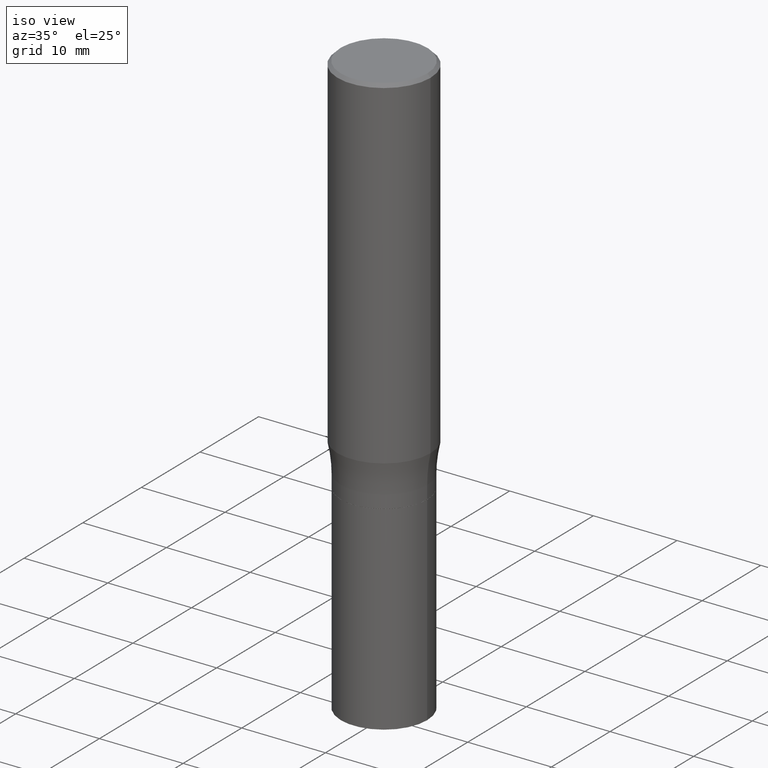
[diagram: clean part render]
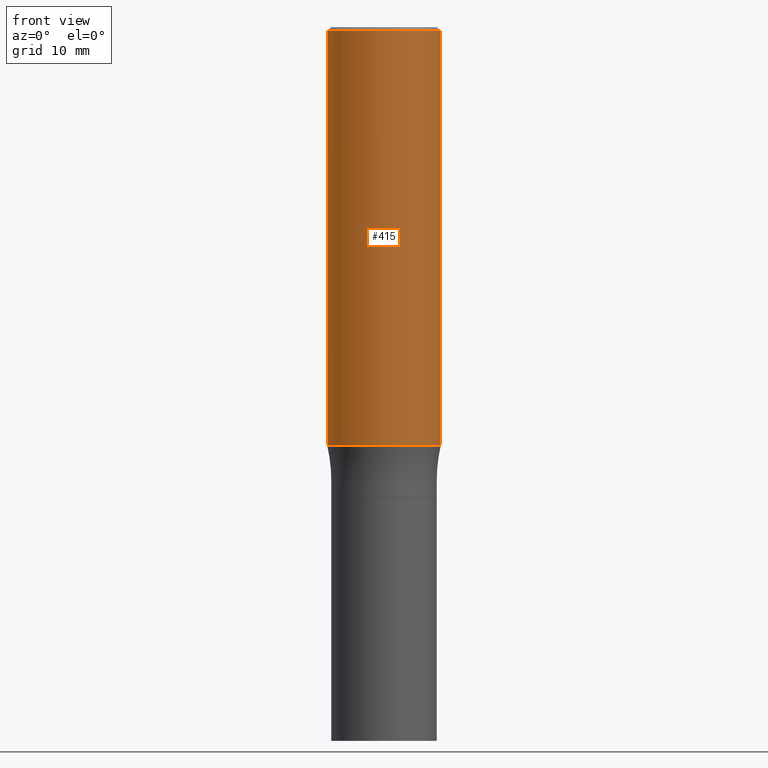
[diagram: tour spotlight — one face highlighted and labeled with its STEP entity id]
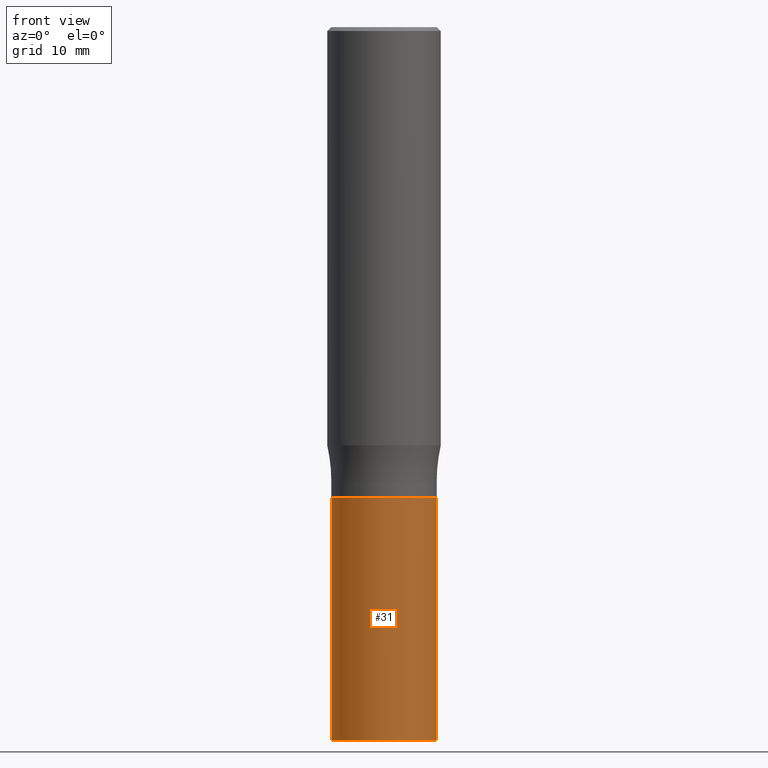
[diagram: tour spotlight — one face highlighted and labeled with its STEP entity id]
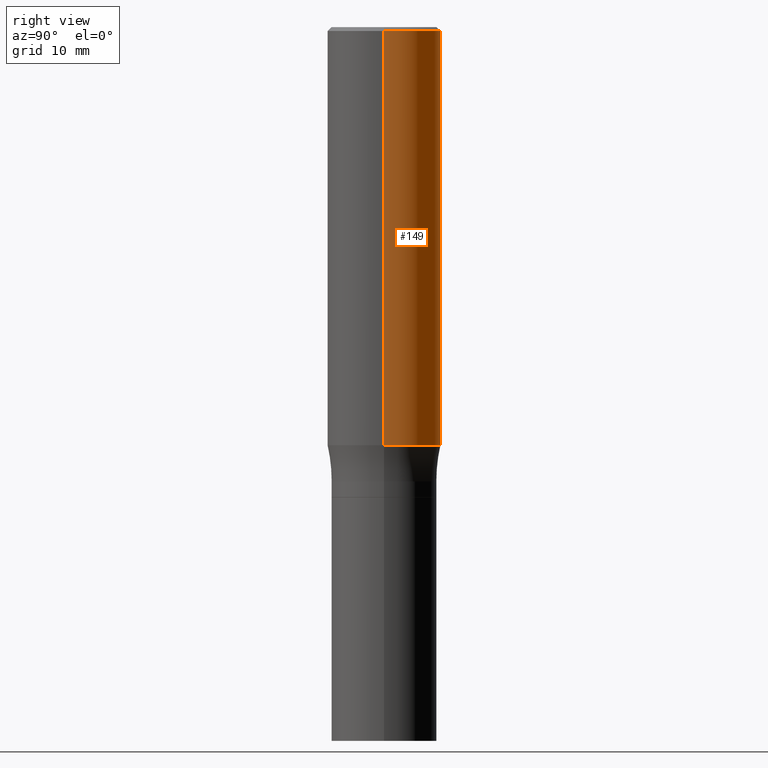
[diagram: tour spotlight — one face highlighted and labeled with its STEP entity id]
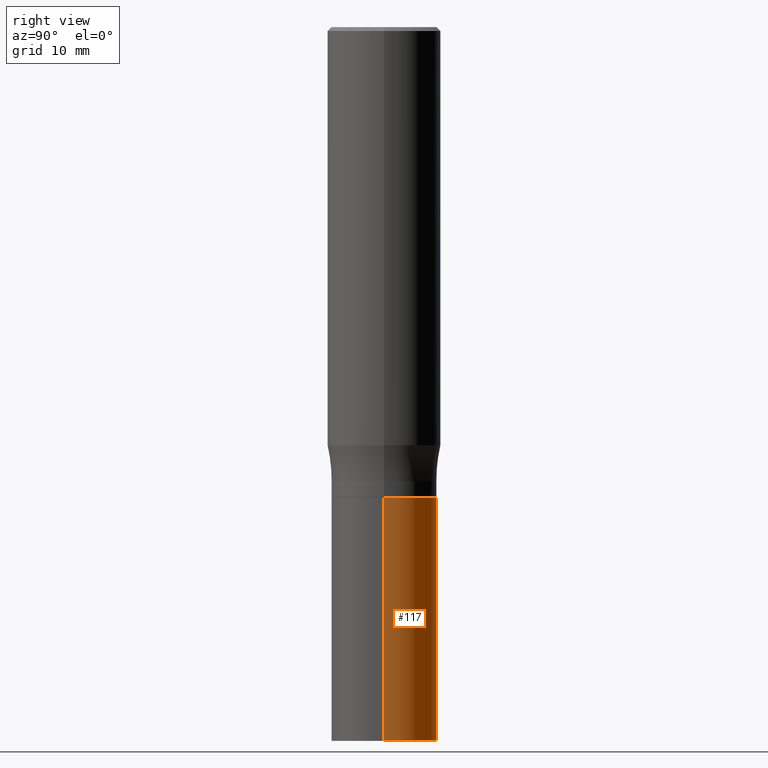
[diagram: tour spotlight — one face highlighted and labeled with its STEP entity id]
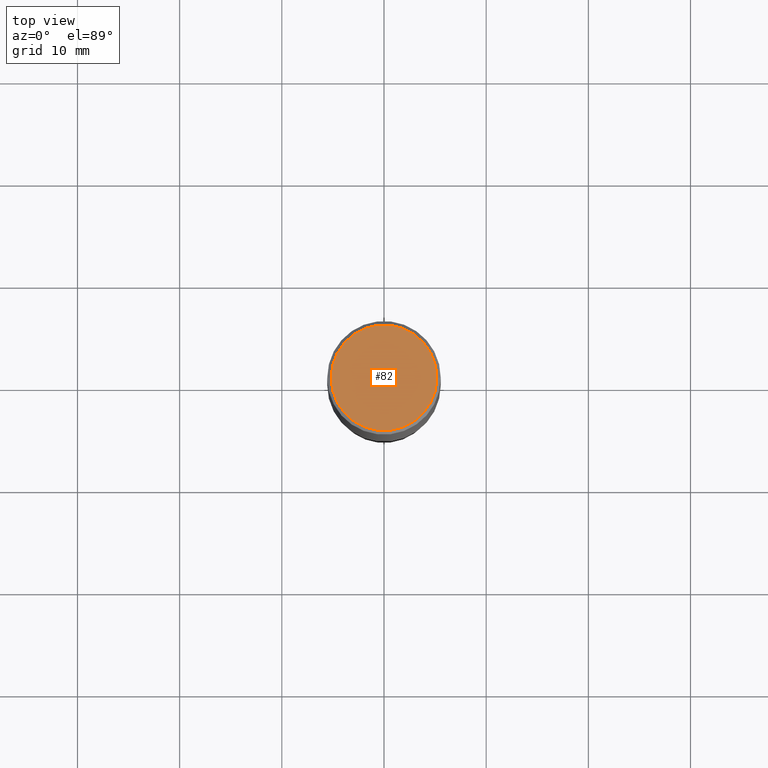
[diagram: tour spotlight — one face highlighted and labeled with its STEP entity id]
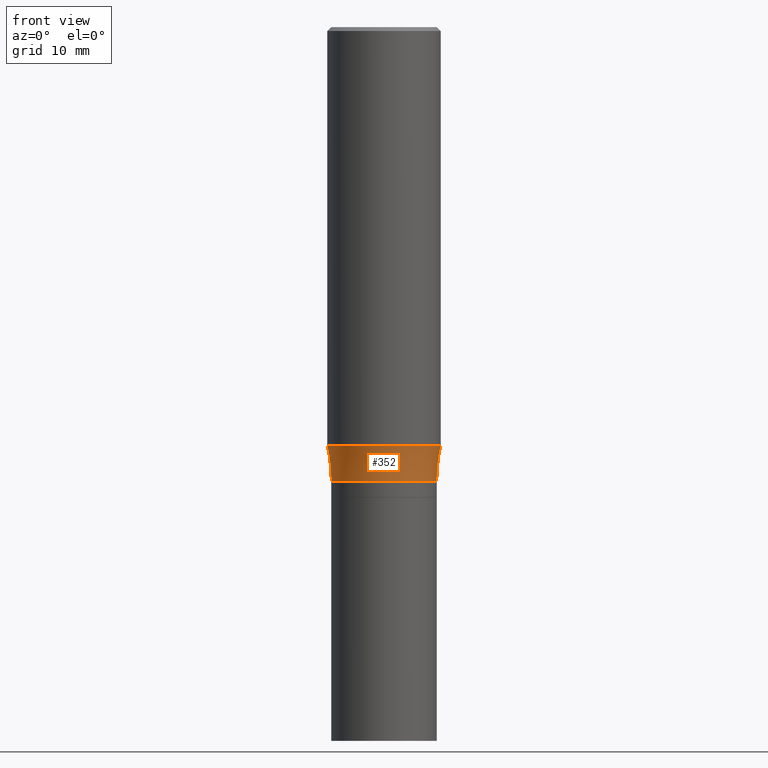
[diagram: tour spotlight — one face highlighted and labeled with its STEP entity id]
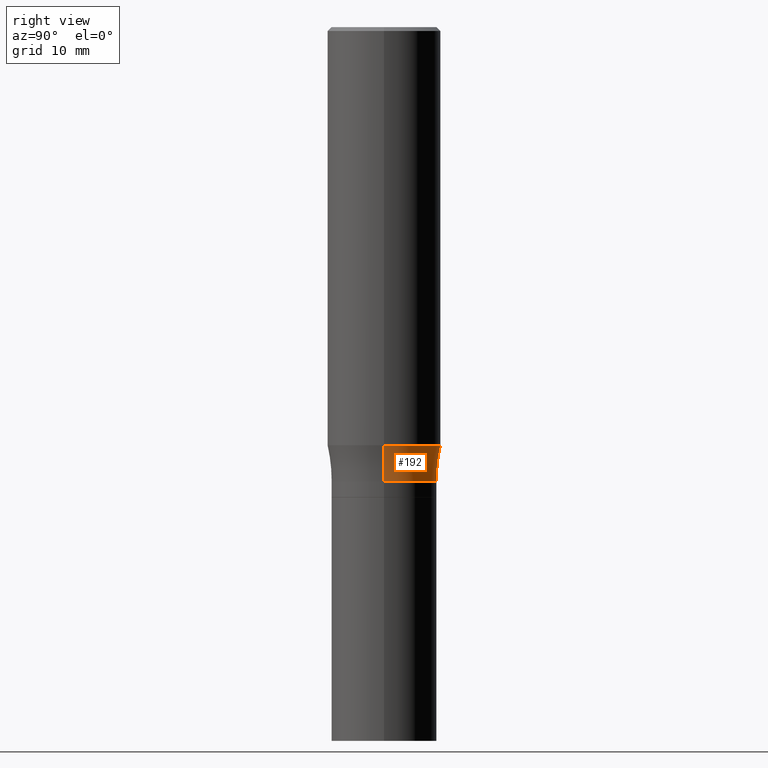
[diagram: tour spotlight — one face highlighted and labeled with its STEP entity id]
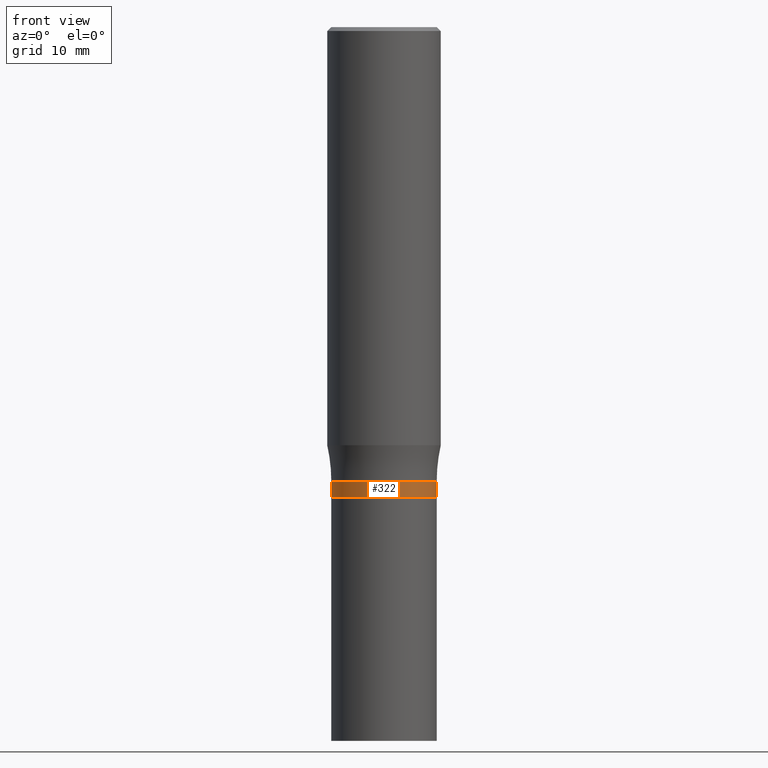
[diagram: tour spotlight — one face highlighted and labeled with its STEP entity id]
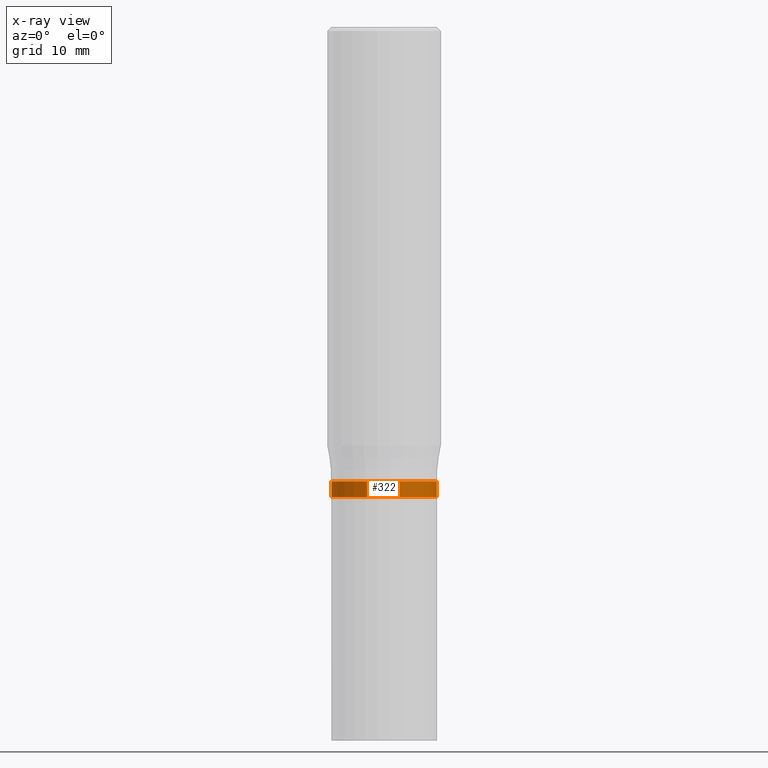
[diagram: x-ray of the same camera — body ghosted, this tour face saturated]
A machine part: a face-by-face anatomy tour. The part has 16 B-rep faces; the first image is the clean iso view, then the 8 largest visible faces are spotlighted one at a time (largest first), each with its STEP entity span.

Face 1 — front view, entity #415. In plain terms, the highlighted cylindrical surface (partial cylindrical patch) has radius 5.5563 mm, axis along (-0, 0, 1).
Definition (entity closure, byte-faithful):
#8 = DIRECTION ( 'NONE',  ( 1.000000000000000000, -6.982962677686266711E-15, 0.000000000000000000 ) ) ;
#13 = LINE ( 'NONE', #224, #209 ) ;
#27 = EDGE_CURVE ( 'NONE', #108, #305, #36, .T. ) ;
#36 = LINE ( 'NONE', #183, #390 ) ;
#47 = DIRECTION ( 'NONE',  ( 1.000000000000000000, -6.982962677686266711E-15, 4.876176775795935232E-29 ) ) ;
#53 = CYLINDRICAL_SURFACE ( 'NONE', #401, 0.2187500000000000278 ) ;
#74 = EDGE_CURVE ( 'NONE', #419, #305, #275, .T. ) ;
#83 = DIRECTION ( 'NONE',  ( -2.445468806185136877E-29, 3.491481338843145188E-15, 1.000000000000000000 ) ) ;
#108 = VERTEX_POINT ( 'NONE', #257 ) ;
#110 = CARTESIAN_POINT ( 'NONE',  ( 0.2187500000000000000, -1.553106157095169608E-15, -0.01499999999999999944 ) ) ;
#114 = VERTEX_POINT ( 'NONE', #238 ) ;
#135 = EDGE_LOOP ( 'NONE', ( #434, #165, #462, #171 ) ) ;
#144 = AXIS2_PLACEMENT_3D ( 'NONE', #340, #405, #8 ) ;
#152 = EDGE_CURVE ( 'NONE', #114, #419, #13, .T. ) ;
#165 = ORIENTED_EDGE ( 'NONE', *, *, #213, .T. ) ;
#171 = ORIENTED_EDGE ( 'NONE', *, *, #74, .F. ) ;
#183 = CARTESIAN_POINT ( 'NONE',  ( 0.2187500000000000278, -1.527523085743871040E-15, 1.066663669705361025E-29 ) ) ;
#209 = VECTOR ( 'NONE', #83, 39.37007874015748143 ) ;
#213 = EDGE_CURVE ( 'NONE', #114, #108, #349, .T. ) ;
#224 = CARTESIAN_POINT ( 'NONE',  ( -0.2187500000000000278, 1.554312234475219354E-15, -1.076017050993260762E-29 ) ) ;
#228 = CARTESIAN_POINT ( 'NONE',  ( -0.2187500000000000000, 1.475150865661223567E-15, -0.01499999999999999944 ) ) ;
#238 = CARTESIAN_POINT ( 'NONE',  ( -0.2187500000000000278, -4.070507188459050610E-15, -1.611012311696323307 ) ) ;
#241 = DIRECTION ( 'NONE',  ( 1.000000000000000000, -6.982962677686266711E-15, 0.000000000000000000 ) ) ;
#257 = CARTESIAN_POINT ( 'NONE',  ( 0.2187500000000000278, -7.152342508678141398E-15, -1.611012311696323307 ) ) ;
#264 = DIRECTION ( 'NONE',  ( -2.445468806185136597E-29, 3.491481338843145583E-15, 1.000000000000000000 ) ) ;
#275 = CIRCLE ( 'NONE', #144, 0.2187500000000000000 ) ;
#305 = VERTEX_POINT ( 'NONE', #110 ) ;
#308 = CARTESIAN_POINT ( 'NONE',  ( 3.939680354633564561E-29, -5.624819422934269766E-15, -1.611012311696323307 ) ) ;
#323 = DIRECTION ( 'NONE',  ( -2.445468806185136877E-29, 3.491481338843145188E-15, 1.000000000000000000 ) ) ;
#340 = CARTESIAN_POINT ( 'NONE',  ( 3.668203209277705088E-31, -5.237222008264718399E-17, -0.01499999999999999944 ) ) ;
#349 = CIRCLE ( 'NONE', #416, 0.2187500000000000278 ) ;
#365 = CARTESIAN_POINT ( 'NONE',  ( 0.000000000000000000, 0.000000000000000000, 0.000000000000000000 ) ) ;
#385 = DIRECTION ( 'NONE',  ( -2.445468806185136597E-29, 3.491481338843145583E-15, 1.000000000000000000 ) ) ;
#390 = VECTOR ( 'NONE', #323, 39.37007874015748143 ) ;
#401 = AXIS2_PLACEMENT_3D ( 'NONE', #365, #264, #47 ) ;
#402 = FACE_OUTER_BOUND ( 'NONE', #135, .T. ) ;
#405 = DIRECTION ( 'NONE',  ( -2.445468806185136597E-29, 3.491481338843145583E-15, 1.000000000000000000 ) ) ;
#415 = ADVANCED_FACE ( 'NONE', ( #402 ), #53, .T. ) ;
#416 = AXIS2_PLACEMENT_3D ( 'NONE', #308, #385, #241 ) ;
#419 = VERTEX_POINT ( 'NONE', #228 ) ;
#434 = ORIENTED_EDGE ( 'NONE', *, *, #152, .F. ) ;
#462 = ORIENTED_EDGE ( 'NONE', *, *, #27, .T. ) ;

Face 2 — front view, entity #31. In plain terms, the highlighted cylindrical surface (partial cylindrical patch) has radius 5.1587 mm, axis along (-0, 0, 1).
Definition (entity closure, byte-faithful):
#19 = CARTESIAN_POINT ( 'NONE',  ( 0.2030999999999999750, -7.744803905821859777E-15, -1.812000000000000055 ) ) ;
#20 = ORIENTED_EDGE ( 'NONE', *, *, #90, .F. ) ;
#25 = CYLINDRICAL_SURFACE ( 'NONE', #309, 0.2030999999999999750 ) ;
#31 = ADVANCED_FACE ( 'NONE', ( #467 ), #25, .T. ) ;
#32 = ORIENTED_EDGE ( 'NONE', *, *, #304, .F. ) ;
#40 = EDGE_CURVE ( 'NONE', #454, #376, #239, .T. ) ;
#84 = CARTESIAN_POINT ( 'NONE',  ( 0.2030999999999999750, -1.418239719838080578E-15, 9.903515031641544743E-30 ) ) ;
#90 = EDGE_CURVE ( 'NONE', #454, #93, #131, .T. ) ;
#93 = VERTEX_POINT ( 'NONE', #306 ) ;
#94 = DIRECTION ( 'NONE',  ( -2.445468806185136877E-29, 3.491481338843145188E-15, 1.000000000000000000 ) ) ;
#105 = AXIS2_PLACEMENT_3D ( 'NONE', #211, #283, #426 ) ;
#116 = VECTOR ( 'NONE', #94, 39.37007874015748143 ) ;
#131 = LINE ( 'NONE', #442, #116 ) ;
#142 = EDGE_LOOP ( 'NONE', ( #20, #433, #321, #32 ) ) ;
#164 = CARTESIAN_POINT ( 'NONE',  ( -0.2030999999999999750, -6.520956637572451722E-15, -2.750000000000000000 ) ) ;
#173 = DIRECTION ( 'NONE',  ( -2.445468806185136597E-29, 3.491481338843145583E-15, 1.000000000000000000 ) ) ;
#203 = DIRECTION ( 'NONE',  ( -2.445468806185136877E-29, 3.491481338843145188E-15, 1.000000000000000000 ) ) ;
#211 = CARTESIAN_POINT ( 'NONE',  ( 4.431189476807467280E-29, -6.326564185983779791E-15, -1.812000000000000055 ) ) ;
#215 = VERTEX_POINT ( 'NONE', #19 ) ;
#216 = DIRECTION ( 'NONE',  ( 1.000000000000000000, -6.982962677686266711E-15, 4.876176775795935793E-29 ) ) ;
#239 = CIRCLE ( 'NONE', #336, 0.2030999999999999750 ) ;
#260 = VECTOR ( 'NONE', #203, 39.37007874015748143 ) ;
#267 = LINE ( 'NONE', #84, #260 ) ;
#283 = DIRECTION ( 'NONE',  ( -2.445468806185136597E-29, 3.491481338843145583E-15, 1.000000000000000000 ) ) ;
#285 = CARTESIAN_POINT ( 'NONE',  ( 0.000000000000000000, 0.000000000000000000, 0.000000000000000000 ) ) ;
#300 = CARTESIAN_POINT ( 'NONE',  ( 0.2030999999999999750, -1.101981340165673142E-14, -2.750000000000000000 ) ) ;
#304 = EDGE_CURVE ( 'NONE', #93, #215, #465, .T. ) ;
#306 = CARTESIAN_POINT ( 'NONE',  ( -0.2030999999999999750, -6.520956637572451722E-15, -1.812000000000000055 ) ) ;
#309 = AXIS2_PLACEMENT_3D ( 'NONE', #285, #173, #216 ) ;
#321 = ORIENTED_EDGE ( 'NONE', *, *, #389, .T. ) ;
#336 = AXIS2_PLACEMENT_3D ( 'NONE', #427, #386, #346 ) ;
#346 = DIRECTION ( 'NONE',  ( 1.000000000000000000, -6.982962677686265922E-15, 0.000000000000000000 ) ) ;
#376 = VERTEX_POINT ( 'NONE', #300 ) ;
#386 = DIRECTION ( 'NONE',  ( -2.445468806185136597E-29, 3.491481338843145583E-15, 1.000000000000000000 ) ) ;
#389 = EDGE_CURVE ( 'NONE', #376, #215, #267, .T. ) ;
#426 = DIRECTION ( 'NONE',  ( 1.000000000000000000, -6.982962677686265922E-15, 0.000000000000000000 ) ) ;
#427 = CARTESIAN_POINT ( 'NONE',  ( 6.725039217009124520E-29, -9.601573681818649859E-15, -2.750000000000000000 ) ) ;
#433 = ORIENTED_EDGE ( 'NONE', *, *, #40, .T. ) ;
#442 = CARTESIAN_POINT ( 'NONE',  ( -0.2030999999999999750, 1.443112296328763300E-15, -9.990357168307712801E-30 ) ) ;
#454 = VERTEX_POINT ( 'NONE', #164 ) ;
#465 = CIRCLE ( 'NONE', #105, 0.2030999999999999750 ) ;
#467 = FACE_OUTER_BOUND ( 'NONE', #142, .T. ) ;

Face 3 — right view, entity #149. In plain terms, the highlighted cylindrical surface (partial cylindrical patch) has radius 5.5563 mm, axis along (-0, 0, 1).
Definition (entity closure, byte-faithful):
#13 = LINE ( 'NONE', #224, #209 ) ;
#27 = EDGE_CURVE ( 'NONE', #108, #305, #36, .T. ) ;
#35 = DIRECTION ( 'NONE',  ( -2.445468806185136597E-29, 3.491481338843145583E-15, 1.000000000000000000 ) ) ;
#36 = LINE ( 'NONE', #183, #390 ) ;
#62 = AXIS2_PLACEMENT_3D ( 'NONE', #159, #413, #207 ) ;
#77 = FACE_OUTER_BOUND ( 'NONE', #103, .T. ) ;
#83 = DIRECTION ( 'NONE',  ( -2.445468806185136877E-29, 3.491481338843145188E-15, 1.000000000000000000 ) ) ;
#103 = EDGE_LOOP ( 'NONE', ( #150, #280, #112, #277 ) ) ;
#108 = VERTEX_POINT ( 'NONE', #257 ) ;
#110 = CARTESIAN_POINT ( 'NONE',  ( 0.2187500000000000000, -1.553106157095169608E-15, -0.01499999999999999944 ) ) ;
#112 = ORIENTED_EDGE ( 'NONE', *, *, #200, .F. ) ;
#114 = VERTEX_POINT ( 'NONE', #238 ) ;
#149 = ADVANCED_FACE ( 'NONE', ( #77 ), #303, .T. ) ;
#150 = ORIENTED_EDGE ( 'NONE', *, *, #178, .T. ) ;
#152 = EDGE_CURVE ( 'NONE', #114, #419, #13, .T. ) ;
#153 = CIRCLE ( 'NONE', #62, 0.2187500000000000278 ) ;
#159 = CARTESIAN_POINT ( 'NONE',  ( 3.939680354633564561E-29, -5.624819422934269766E-15, -1.611012311696323307 ) ) ;
#178 = EDGE_CURVE ( 'NONE', #108, #114, #153, .T. ) ;
#183 = CARTESIAN_POINT ( 'NONE',  ( 0.2187500000000000278, -1.527523085743871040E-15, 1.066663669705361025E-29 ) ) ;
#200 = EDGE_CURVE ( 'NONE', #305, #419, #202, .T. ) ;
#201 = DIRECTION ( 'NONE',  ( -2.445468806185136597E-29, 3.491481338843145583E-15, 1.000000000000000000 ) ) ;
#202 = CIRCLE ( 'NONE', #456, 0.2187500000000000000 ) ;
#207 = DIRECTION ( 'NONE',  ( 1.000000000000000000, -6.982962677686266711E-15, 0.000000000000000000 ) ) ;
#209 = VECTOR ( 'NONE', #83, 39.37007874015748143 ) ;
#224 = CARTESIAN_POINT ( 'NONE',  ( -0.2187500000000000278, 1.554312234475219354E-15, -1.076017050993260762E-29 ) ) ;
#228 = CARTESIAN_POINT ( 'NONE',  ( -0.2187500000000000000, 1.475150865661223567E-15, -0.01499999999999999944 ) ) ;
#238 = CARTESIAN_POINT ( 'NONE',  ( -0.2187500000000000278, -4.070507188459050610E-15, -1.611012311696323307 ) ) ;
#240 = CARTESIAN_POINT ( 'NONE',  ( 3.668203209277705088E-31, -5.237222008264718399E-17, -0.01499999999999999944 ) ) ;
#257 = CARTESIAN_POINT ( 'NONE',  ( 0.2187500000000000278, -7.152342508678141398E-15, -1.611012311696323307 ) ) ;
#272 = CARTESIAN_POINT ( 'NONE',  ( 0.000000000000000000, 0.000000000000000000, 0.000000000000000000 ) ) ;
#277 = ORIENTED_EDGE ( 'NONE', *, *, #27, .F. ) ;
#280 = ORIENTED_EDGE ( 'NONE', *, *, #152, .T. ) ;
#303 = CYLINDRICAL_SURFACE ( 'NONE', #400, 0.2187500000000000278 ) ;
#305 = VERTEX_POINT ( 'NONE', #110 ) ;
#323 = DIRECTION ( 'NONE',  ( -2.445468806185136877E-29, 3.491481338843145188E-15, 1.000000000000000000 ) ) ;
#337 = DIRECTION ( 'NONE',  ( 1.000000000000000000, -6.982962677686266711E-15, 4.876176775795935232E-29 ) ) ;
#390 = VECTOR ( 'NONE', #323, 39.37007874015748143 ) ;
#396 = DIRECTION ( 'NONE',  ( 1.000000000000000000, -6.982962677686266711E-15, 0.000000000000000000 ) ) ;
#400 = AXIS2_PLACEMENT_3D ( 'NONE', #272, #201, #337 ) ;
#413 = DIRECTION ( 'NONE',  ( -2.445468806185136597E-29, 3.491481338843145583E-15, 1.000000000000000000 ) ) ;
#419 = VERTEX_POINT ( 'NONE', #228 ) ;
#456 = AXIS2_PLACEMENT_3D ( 'NONE', #240, #35, #396 ) ;

Face 4 — right view, entity #117. In plain terms, the highlighted cylindrical surface (partial cylindrical patch) has radius 5.1587 mm, axis along (-0, 0, 1).
Definition (entity closure, byte-faithful):
#5 = CARTESIAN_POINT ( 'NONE',  ( 4.431189476807467280E-29, -6.326564185983779791E-15, -1.812000000000000055 ) ) ;
#10 = FACE_OUTER_BOUND ( 'NONE', #425, .T. ) ;
#12 = CIRCLE ( 'NONE', #466, 0.2030999999999999750 ) ;
#19 = CARTESIAN_POINT ( 'NONE',  ( 0.2030999999999999750, -7.744803905821859777E-15, -1.812000000000000055 ) ) ;
#39 = DIRECTION ( 'NONE',  ( -2.445468806185136597E-29, 3.491481338843145583E-15, 1.000000000000000000 ) ) ;
#50 = ORIENTED_EDGE ( 'NONE', *, *, #281, .T. ) ;
#84 = CARTESIAN_POINT ( 'NONE',  ( 0.2030999999999999750, -1.418239719838080578E-15, 9.903515031641544743E-30 ) ) ;
#85 = CIRCLE ( 'NONE', #219, 0.2030999999999999750 ) ;
#90 = EDGE_CURVE ( 'NONE', #454, #93, #131, .T. ) ;
#91 = DIRECTION ( 'NONE',  ( 1.000000000000000000, -6.982962677686266711E-15, 4.876176775795935793E-29 ) ) ;
#93 = VERTEX_POINT ( 'NONE', #306 ) ;
#94 = DIRECTION ( 'NONE',  ( -2.445468806185136877E-29, 3.491481338843145188E-15, 1.000000000000000000 ) ) ;
#96 = AXIS2_PLACEMENT_3D ( 'NONE', #410, #231, #91 ) ;
#116 = VECTOR ( 'NONE', #94, 39.37007874015748143 ) ;
#117 = ADVANCED_FACE ( 'NONE', ( #10 ), #335, .T. ) ;
#127 = DIRECTION ( 'NONE',  ( -2.445468806185136597E-29, 3.491481338843145583E-15, 1.000000000000000000 ) ) ;
#131 = LINE ( 'NONE', #442, #116 ) ;
#140 = ORIENTED_EDGE ( 'NONE', *, *, #389, .F. ) ;
#164 = CARTESIAN_POINT ( 'NONE',  ( -0.2030999999999999750, -6.520956637572451722E-15, -2.750000000000000000 ) ) ;
#167 = ORIENTED_EDGE ( 'NONE', *, *, #90, .T. ) ;
#198 = DIRECTION ( 'NONE',  ( 1.000000000000000000, -6.982962677686265922E-15, 0.000000000000000000 ) ) ;
#203 = DIRECTION ( 'NONE',  ( -2.445468806185136877E-29, 3.491481338843145188E-15, 1.000000000000000000 ) ) ;
#215 = VERTEX_POINT ( 'NONE', #19 ) ;
#219 = AXIS2_PLACEMENT_3D ( 'NONE', #298, #39, #356 ) ;
#231 = DIRECTION ( 'NONE',  ( -2.445468806185136597E-29, 3.491481338843145583E-15, 1.000000000000000000 ) ) ;
#260 = VECTOR ( 'NONE', #203, 39.37007874015748143 ) ;
#267 = LINE ( 'NONE', #84, #260 ) ;
#279 = ORIENTED_EDGE ( 'NONE', *, *, #360, .F. ) ;
#281 = EDGE_CURVE ( 'NONE', #376, #454, #85, .T. ) ;
#298 = CARTESIAN_POINT ( 'NONE',  ( 6.725039217009124520E-29, -9.601573681818649859E-15, -2.750000000000000000 ) ) ;
#300 = CARTESIAN_POINT ( 'NONE',  ( 0.2030999999999999750, -1.101981340165673142E-14, -2.750000000000000000 ) ) ;
#306 = CARTESIAN_POINT ( 'NONE',  ( -0.2030999999999999750, -6.520956637572451722E-15, -1.812000000000000055 ) ) ;
#335 = CYLINDRICAL_SURFACE ( 'NONE', #96, 0.2030999999999999750 ) ;
#356 = DIRECTION ( 'NONE',  ( 1.000000000000000000, -6.982962677686265922E-15, 0.000000000000000000 ) ) ;
#360 = EDGE_CURVE ( 'NONE', #215, #93, #12, .T. ) ;
#376 = VERTEX_POINT ( 'NONE', #300 ) ;
#389 = EDGE_CURVE ( 'NONE', #376, #215, #267, .T. ) ;
#410 = CARTESIAN_POINT ( 'NONE',  ( 0.000000000000000000, 0.000000000000000000, 0.000000000000000000 ) ) ;
#425 = EDGE_LOOP ( 'NONE', ( #50, #167, #279, #140 ) ) ;
#442 = CARTESIAN_POINT ( 'NONE',  ( -0.2030999999999999750, 1.443112296328763300E-15, -9.990357168307712801E-30 ) ) ;
#454 = VERTEX_POINT ( 'NONE', #164 ) ;
#466 = AXIS2_PLACEMENT_3D ( 'NONE', #5, #127, #198 ) ;

Face 5 — top view, entity #82. In plain terms, the highlighted planar face has unit normal (0, -0, -1).
Definition (entity closure, byte-faithful):
#22 = CIRCLE ( 'NONE', #177, 0.2037499999999999867 ) ;
#78 = CARTESIAN_POINT ( 'NONE',  ( -0.2037499999999999867, 1.448964755619900027E-15, -1.094037480906238857E-16 ) ) ;
#82 = ADVANCED_FACE ( 'NONE', ( #195 ), #269, .F. ) ;
#88 = DIRECTION ( 'NONE',  ( 2.438088387897960049E-29, -3.491481338843145188E-15, -1.000000000000000000 ) ) ;
#156 = CARTESIAN_POINT ( 'NONE',  ( 2.675434532353328846E-45, -3.819811448578746494E-31, -1.094037480906138524E-16 ) ) ;
#177 = AXIS2_PLACEMENT_3D ( 'NONE', #406, #409, #236 ) ;
#191 = DIRECTION ( 'NONE',  ( 1.000000000000000000, -6.982962677686266711E-15, 4.875065411617369217E-29 ) ) ;
#195 = FACE_OUTER_BOUND ( 'NONE', #218, .T. ) ;
#197 = CARTESIAN_POINT ( 'NONE',  ( 1.422778645578576487E-15, 0.2037499999999999867, -7.660911968345976720E-16 ) ) ;
#218 = EDGE_LOOP ( 'NONE', ( #271, #464 ) ) ;
#226 = CIRCLE ( 'NONE', #432, 0.2037499999999999867 ) ;
#236 = DIRECTION ( 'NONE',  ( 1.000000000000000000, -6.982962677686266711E-15, 4.875065411617369217E-29 ) ) ;
#263 = CARTESIAN_POINT ( 'NONE',  ( 0.2037499999999999867, -1.475466312070559866E-15, -1.094037480906037204E-16 ) ) ;
#268 = AXIS2_PLACEMENT_3D ( 'NONE', #197, #88, #370 ) ;
#269 = PLANE ( 'NONE',  #268 ) ;
#271 = ORIENTED_EDGE ( 'NONE', *, *, #404, .T. ) ;
#290 = VERTEX_POINT ( 'NONE', #263 ) ;
#292 = VERTEX_POINT ( 'NONE', #78 ) ;
#338 = DIRECTION ( 'NONE',  ( -2.445468806185136597E-29, 3.491481338843145583E-15, 1.000000000000000000 ) ) ;
#370 = DIRECTION ( 'NONE',  ( -1.000000000000000000, 6.982962677686265922E-15, -4.876176775795935793E-29 ) ) ;
#394 = EDGE_CURVE ( 'NONE', #290, #292, #22, .T. ) ;
#404 = EDGE_CURVE ( 'NONE', #292, #290, #226, .T. ) ;
#406 = CARTESIAN_POINT ( 'NONE',  ( 2.675434532353328846E-45, -3.819811448578746494E-31, -1.094037480906138524E-16 ) ) ;
#409 = DIRECTION ( 'NONE',  ( -2.445468806185136597E-29, 3.491481338843145583E-15, 1.000000000000000000 ) ) ;
#432 = AXIS2_PLACEMENT_3D ( 'NONE', #156, #338, #191 ) ;
#464 = ORIENTED_EDGE ( 'NONE', *, *, #394, .T. ) ;

Face 6 — front view, entity #352. In plain terms, the highlighted toroidal blend (fillet) surface has major radius 21.0337 mm and minor (blend) radius 15.875 mm.
Definition (entity closure, byte-faithful):
#9 = DIRECTION ( 'NONE',  ( -2.445468806185136597E-29, 3.491481338843145583E-15, 1.000000000000000000 ) ) ;
#11 = AXIS2_PLACEMENT_3D ( 'NONE', #187, #265, #194 ) ;
#14 = DIRECTION ( 'NONE',  ( 1.000000000000000000, -6.982962677686266711E-15, 4.883557194083112901E-29 ) ) ;
#42 = FACE_OUTER_BOUND ( 'NONE', #118, .T. ) ;
#49 = CARTESIAN_POINT ( 'NONE',  ( 4.279570410823988484E-29, -6.110092342975504671E-15, -1.750000000000000000 ) ) ;
#66 = ORIENTED_EDGE ( 'NONE', *, *, #453, .T. ) ;
#79 = TOROIDAL_SURFACE ( 'NONE', #391, 0.8281000000000000583, 0.6250000000000000000 ) ;
#108 = VERTEX_POINT ( 'NONE', #257 ) ;
#114 = VERTEX_POINT ( 'NONE', #238 ) ;
#118 = EDGE_LOOP ( 'NONE', ( #319, #66, #429, #450 ) ) ;
#122 = DIRECTION ( 'NONE',  ( -1.000000000000000000, 7.105427357601001859E-15, 0.000000000000000000 ) ) ;
#162 = AXIS2_PLACEMENT_3D ( 'NONE', #435, #217, #258 ) ;
#187 = CARTESIAN_POINT ( 'NONE',  ( 4.279570410823988484E-29, -6.110092342975504671E-15, -1.750000000000000000 ) ) ;
#194 = DIRECTION ( 'NONE',  ( 1.000000000000000000, -6.982962677686265133E-15, 0.000000000000000000 ) ) ;
#205 = CIRCLE ( 'NONE', #374, 0.6250000000000000000 ) ;
#213 = EDGE_CURVE ( 'NONE', #114, #108, #349, .T. ) ;
#217 = DIRECTION ( 'NONE',  ( -6.982962677686266711E-15, -1.000000000000000000, 3.491481338843145583E-15 ) ) ;
#233 = EDGE_CURVE ( 'NONE', #455, #341, #316, .T. ) ;
#238 = CARTESIAN_POINT ( 'NONE',  ( -0.2187500000000000278, -4.070507188459050610E-15, -1.611012311696323307 ) ) ;
#241 = DIRECTION ( 'NONE',  ( 1.000000000000000000, -6.982962677686266711E-15, 0.000000000000000000 ) ) ;
#257 = CARTESIAN_POINT ( 'NONE',  ( 0.2187500000000000278, -7.152342508678141398E-15, -1.611012311696323307 ) ) ;
#258 = DIRECTION ( 'NONE',  ( 1.000000000000000000, -6.982962677686265133E-15, 0.000000000000000000 ) ) ;
#265 = DIRECTION ( 'NONE',  ( -2.445468806185136597E-29, 3.491481338843145583E-15, 1.000000000000000000 ) ) ;
#308 = CARTESIAN_POINT ( 'NONE',  ( 3.939680354633564561E-29, -5.624819422934269766E-15, -1.611012311696323307 ) ) ;
#315 = EDGE_CURVE ( 'NONE', #108, #341, #358, .T. ) ;
#316 = CIRCLE ( 'NONE', #11, 0.2031000000000001415 ) ;
#319 = ORIENTED_EDGE ( 'NONE', *, *, #213, .F. ) ;
#334 = CARTESIAN_POINT ( 'NONE',  ( -0.2031000000000001415, -4.368743617552894511E-15, -1.750000000000000000 ) ) ;
#341 = VERTEX_POINT ( 'NONE', #371 ) ;
#349 = CIRCLE ( 'NONE', #416, 0.2187500000000000278 ) ;
#352 = ADVANCED_FACE ( 'NONE', ( #42 ), #79, .F. ) ;
#358 = CIRCLE ( 'NONE', #162, 0.6250000000000000000 ) ;
#371 = CARTESIAN_POINT ( 'NONE',  ( 0.2031000000000001415, -7.528332062813585446E-15, -1.750000000000000000 ) ) ;
#374 = AXIS2_PLACEMENT_3D ( 'NONE', #437, #403, #122 ) ;
#385 = DIRECTION ( 'NONE',  ( -2.445468806185136597E-29, 3.491481338843145583E-15, 1.000000000000000000 ) ) ;
#391 = AXIS2_PLACEMENT_3D ( 'NONE', #49, #9, #14 ) ;
#403 = DIRECTION ( 'NONE',  ( 7.105427357601001859E-15, 1.000000000000000000, -3.491481338843145583E-15 ) ) ;
#416 = AXIS2_PLACEMENT_3D ( 'NONE', #308, #385, #241 ) ;
#429 = ORIENTED_EDGE ( 'NONE', *, *, #233, .T. ) ;
#435 = CARTESIAN_POINT ( 'NONE',  ( 0.8281000000000000583, -1.189268373636750372E-14, -1.750000000000000000 ) ) ;
#437 = CARTESIAN_POINT ( 'NONE',  ( -0.8281000000000000583, -2.260879481461139275E-16, -1.750000000000000000 ) ) ;
#450 = ORIENTED_EDGE ( 'NONE', *, *, #315, .F. ) ;
#453 = EDGE_CURVE ( 'NONE', #114, #455, #205, .T. ) ;
#455 = VERTEX_POINT ( 'NONE', #334 ) ;

Face 7 — right view, entity #192. In plain terms, the highlighted toroidal blend (fillet) surface has major radius 21.0337 mm and minor (blend) radius 15.875 mm.
Definition (entity closure, byte-faithful):
#7 = CARTESIAN_POINT ( 'NONE',  ( 4.279570410823988484E-29, -6.110092342975504671E-15, -1.750000000000000000 ) ) ;
#15 = EDGE_LOOP ( 'NONE', ( #312, #392, #34, #119 ) ) ;
#34 = ORIENTED_EDGE ( 'NONE', *, *, #315, .T. ) ;
#62 = AXIS2_PLACEMENT_3D ( 'NONE', #159, #413, #207 ) ;
#108 = VERTEX_POINT ( 'NONE', #257 ) ;
#114 = VERTEX_POINT ( 'NONE', #238 ) ;
#119 = ORIENTED_EDGE ( 'NONE', *, *, #243, .T. ) ;
#122 = DIRECTION ( 'NONE',  ( -1.000000000000000000, 7.105427357601001859E-15, 0.000000000000000000 ) ) ;
#137 = DIRECTION ( 'NONE',  ( -2.445468806185136597E-29, 3.491481338843145583E-15, 1.000000000000000000 ) ) ;
#153 = CIRCLE ( 'NONE', #62, 0.2187500000000000278 ) ;
#155 = FACE_OUTER_BOUND ( 'NONE', #15, .T. ) ;
#157 = DIRECTION ( 'NONE',  ( 1.000000000000000000, -6.982962677686265133E-15, 0.000000000000000000 ) ) ;
#159 = CARTESIAN_POINT ( 'NONE',  ( 3.939680354633564561E-29, -5.624819422934269766E-15, -1.611012311696323307 ) ) ;
#162 = AXIS2_PLACEMENT_3D ( 'NONE', #435, #217, #258 ) ;
#178 = EDGE_CURVE ( 'NONE', #108, #114, #153, .T. ) ;
#184 = DIRECTION ( 'NONE',  ( -2.445468806185136597E-29, 3.491481338843145583E-15, 1.000000000000000000 ) ) ;
#192 = ADVANCED_FACE ( 'NONE', ( #155 ), #399, .F. ) ;
#205 = CIRCLE ( 'NONE', #374, 0.6250000000000000000 ) ;
#207 = DIRECTION ( 'NONE',  ( 1.000000000000000000, -6.982962677686266711E-15, 0.000000000000000000 ) ) ;
#217 = DIRECTION ( 'NONE',  ( -6.982962677686266711E-15, -1.000000000000000000, 3.491481338843145583E-15 ) ) ;
#238 = CARTESIAN_POINT ( 'NONE',  ( -0.2187500000000000278, -4.070507188459050610E-15, -1.611012311696323307 ) ) ;
#243 = EDGE_CURVE ( 'NONE', #341, #455, #373, .T. ) ;
#254 = AXIS2_PLACEMENT_3D ( 'NONE', #7, #184, #157 ) ;
#257 = CARTESIAN_POINT ( 'NONE',  ( 0.2187500000000000278, -7.152342508678141398E-15, -1.611012311696323307 ) ) ;
#258 = DIRECTION ( 'NONE',  ( 1.000000000000000000, -6.982962677686265133E-15, 0.000000000000000000 ) ) ;
#295 = AXIS2_PLACEMENT_3D ( 'NONE', #299, #137, #378 ) ;
#299 = CARTESIAN_POINT ( 'NONE',  ( 4.279570410823988484E-29, -6.110092342975504671E-15, -1.750000000000000000 ) ) ;
#312 = ORIENTED_EDGE ( 'NONE', *, *, #453, .F. ) ;
#315 = EDGE_CURVE ( 'NONE', #108, #341, #358, .T. ) ;
#334 = CARTESIAN_POINT ( 'NONE',  ( -0.2031000000000001415, -4.368743617552894511E-15, -1.750000000000000000 ) ) ;
#341 = VERTEX_POINT ( 'NONE', #371 ) ;
#358 = CIRCLE ( 'NONE', #162, 0.6250000000000000000 ) ;
#371 = CARTESIAN_POINT ( 'NONE',  ( 0.2031000000000001415, -7.528332062813585446E-15, -1.750000000000000000 ) ) ;
#373 = CIRCLE ( 'NONE', #254, 0.2031000000000001415 ) ;
#374 = AXIS2_PLACEMENT_3D ( 'NONE', #437, #403, #122 ) ;
#378 = DIRECTION ( 'NONE',  ( 1.000000000000000000, -6.982962677686266711E-15, 4.883557194083112901E-29 ) ) ;
#392 = ORIENTED_EDGE ( 'NONE', *, *, #178, .F. ) ;
#399 = TOROIDAL_SURFACE ( 'NONE', #295, 0.8281000000000000583, 0.6250000000000000000 ) ;
#403 = DIRECTION ( 'NONE',  ( 7.105427357601001859E-15, 1.000000000000000000, -3.491481338843145583E-15 ) ) ;
#413 = DIRECTION ( 'NONE',  ( -2.445468806185136597E-29, 3.491481338843145583E-15, 1.000000000000000000 ) ) ;
#435 = CARTESIAN_POINT ( 'NONE',  ( 0.8281000000000000583, -1.189268373636750372E-14, -1.750000000000000000 ) ) ;
#437 = CARTESIAN_POINT ( 'NONE',  ( -0.8281000000000000583, -2.260879481461139275E-16, -1.750000000000000000 ) ) ;
#453 = EDGE_CURVE ( 'NONE', #114, #455, #205, .T. ) ;
#455 = VERTEX_POINT ( 'NONE', #334 ) ;

Face 8 — front view, entity #322. An x-ray twin of the same camera follows (body ghosted, this face saturated) — the face is partly hidden behind the body. In plain terms, the highlighted cylindrical surface (partial cylindrical patch) has radius 5.1587 mm, axis along (-0, 0, 1).
Definition (entity closure, byte-faithful):
#4 = DIRECTION ( 'NONE',  ( -2.445468806185136877E-29, 3.491481338843145188E-15, 1.000000000000000000 ) ) ;
#11 = AXIS2_PLACEMENT_3D ( 'NONE', #187, #265, #194 ) ;
#29 = CYLINDRICAL_SURFACE ( 'NONE', #230, 0.2031000000000001415 ) ;
#44 = AXIS2_PLACEMENT_3D ( 'NONE', #185, #327, #293 ) ;
#55 = CARTESIAN_POINT ( 'NONE',  ( -0.2031000000000001415, 1.443112296328764483E-15, -9.990357168307721209E-30 ) ) ;
#64 = EDGE_LOOP ( 'NONE', ( #133, #100, #97, #353 ) ) ;
#97 = ORIENTED_EDGE ( 'NONE', *, *, #291, .T. ) ;
#100 = ORIENTED_EDGE ( 'NONE', *, *, #294, .T. ) ;
#124 = DIRECTION ( 'NONE',  ( 1.000000000000000000, -6.982962677686266711E-15, 4.876176775795936353E-29 ) ) ;
#133 = ORIENTED_EDGE ( 'NONE', *, *, #180, .F. ) ;
#175 = VECTOR ( 'NONE', #398, 39.37007874015748143 ) ;
#180 = EDGE_CURVE ( 'NONE', #395, #455, #190, .T. ) ;
#185 = CARTESIAN_POINT ( 'NONE',  ( 4.429966742404375039E-29, -6.324818445314358287E-15, -1.811500000000000110 ) ) ;
#187 = CARTESIAN_POINT ( 'NONE',  ( 4.279570410823988484E-29, -6.110092342975504671E-15, -1.750000000000000000 ) ) ;
#190 = LINE ( 'NONE', #55, #431 ) ;
#194 = DIRECTION ( 'NONE',  ( 1.000000000000000000, -6.982962677686265133E-15, 0.000000000000000000 ) ) ;
#196 = CARTESIAN_POINT ( 'NONE',  ( -0.2031000000000001970, -4.774343097816166799E-15, -1.811500000000000110 ) ) ;
#221 = VERTEX_POINT ( 'NONE', #296 ) ;
#230 = AXIS2_PLACEMENT_3D ( 'NONE', #411, #441, #124 ) ;
#233 = EDGE_CURVE ( 'NONE', #455, #341, #316, .T. ) ;
#265 = DIRECTION ( 'NONE',  ( -2.445468806185136597E-29, 3.491481338843145583E-15, 1.000000000000000000 ) ) ;
#291 = EDGE_CURVE ( 'NONE', #221, #341, #326, .T. ) ;
#293 = DIRECTION ( 'NONE',  ( 1.000000000000000000, -6.982962677686267499E-15, 0.000000000000000000 ) ) ;
#294 = EDGE_CURVE ( 'NONE', #395, #221, #407, .T. ) ;
#296 = CARTESIAN_POINT ( 'NONE',  ( 0.2031000000000001970, -7.743058165152440640E-15, -1.811500000000000110 ) ) ;
#316 = CIRCLE ( 'NONE', #11, 0.2031000000000001415 ) ;
#322 = ADVANCED_FACE ( 'NONE', ( #347 ), #29, .T. ) ;
#326 = LINE ( 'NONE', #468, #175 ) ;
#327 = DIRECTION ( 'NONE',  ( -2.445468806185136597E-29, 3.491481338843145583E-15, 1.000000000000000000 ) ) ;
#334 = CARTESIAN_POINT ( 'NONE',  ( -0.2031000000000001415, -4.368743617552894511E-15, -1.750000000000000000 ) ) ;
#341 = VERTEX_POINT ( 'NONE', #371 ) ;
#347 = FACE_OUTER_BOUND ( 'NONE', #64, .T. ) ;
#353 = ORIENTED_EDGE ( 'NONE', *, *, #233, .F. ) ;
#371 = CARTESIAN_POINT ( 'NONE',  ( 0.2031000000000001415, -7.528332062813585446E-15, -1.750000000000000000 ) ) ;
#395 = VERTEX_POINT ( 'NONE', #196 ) ;
#398 = DIRECTION ( 'NONE',  ( -2.445468806185136877E-29, 3.491481338843145188E-15, 1.000000000000000000 ) ) ;
#407 = CIRCLE ( 'NONE', #44, 0.2031000000000001970 ) ;
#411 = CARTESIAN_POINT ( 'NONE',  ( 0.000000000000000000, 0.000000000000000000, 0.000000000000000000 ) ) ;
#431 = VECTOR ( 'NONE', #4, 39.37007874015748143 ) ;
#441 = DIRECTION ( 'NONE',  ( -2.445468806185136597E-29, 3.491481338843145583E-15, 1.000000000000000000 ) ) ;
#455 = VERTEX_POINT ( 'NONE', #334 ) ;
#468 = CARTESIAN_POINT ( 'NONE',  ( 0.2031000000000001415, -1.418239719838081761E-15, 9.903515031641553151E-30 ) ) ;